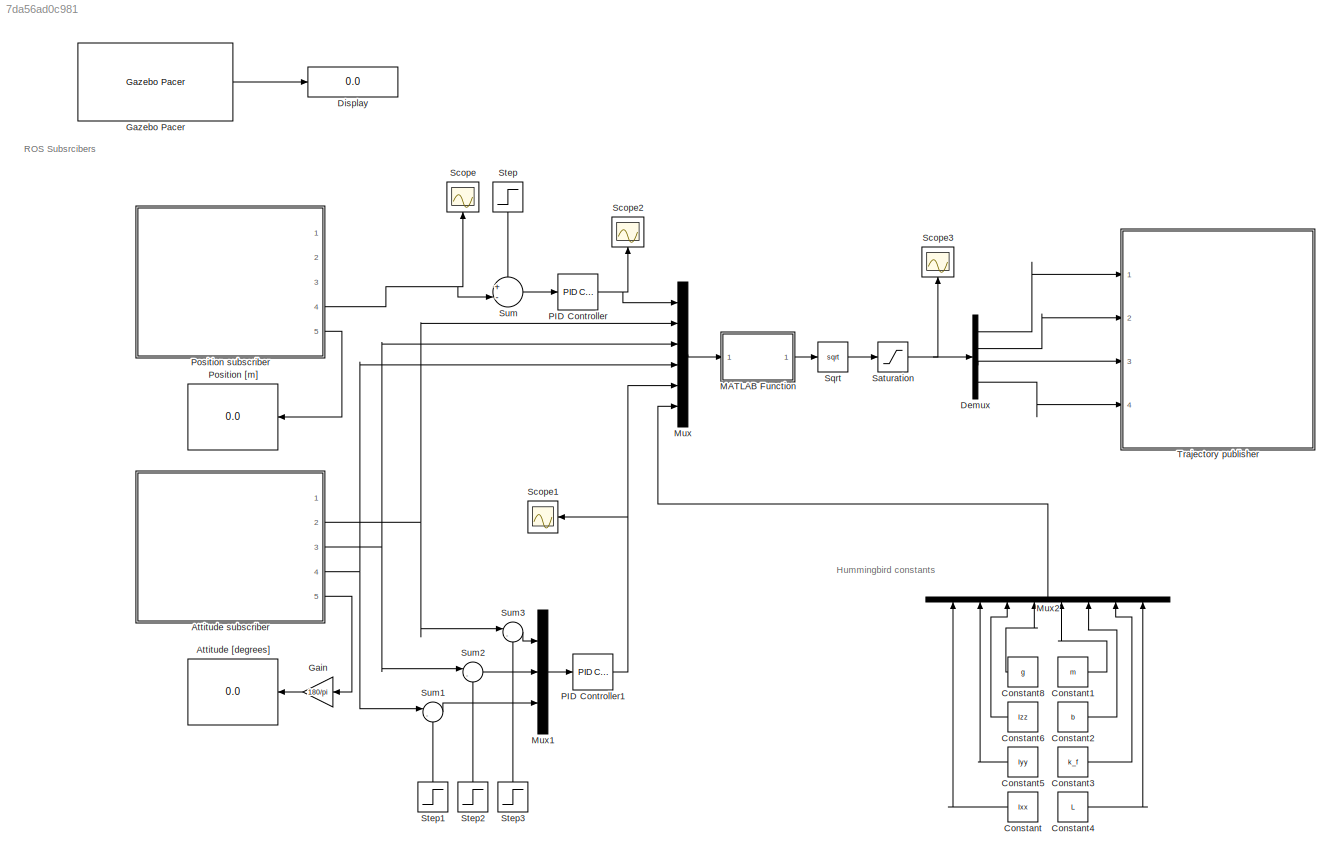
MODEL slx_7da56ad0c981
KIND model
CONFIG AbsTol = auto
CONFIG EnableMultiTasking = off
CONFIG FixedStep = FIXED_STEP_SIZE
CONFIG MaxStep = auto
CONFIG MinStep = auto
CONFIG RelTol = 1e-3
CONFIG SampleTimeConstraint = Unconstrained
CONFIG Solver = FixedStepAuto
CONFIG SolverName = FixedStepAuto
CONFIG StartTime = 0.0
CONFIG StopTime = inf
WORKSPACE source: mxarray member
WORKSPACE SL_ROS_VariableLengthArrays_MaxSizes: object (value not decoded)
BLOCK [Display] Attitude [degrees]
  Decimation = 1
  Ports = [1]
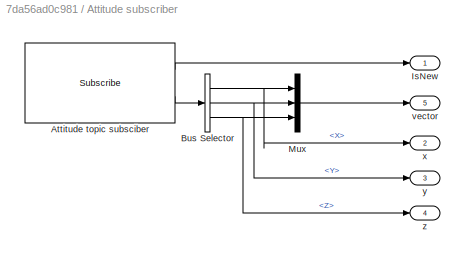
BLOCK [SubSystem] Attitude subscriber
  Ports = [0, 5]
  RequestExecContextInheritance = off
BLOCK [Reference] Attitude subscriber/Attitude topic subsciber  REF=robotlib/Subscribe
  Ports = [0, 2]
  SourceBlock = robotlib/Subscribe
  SourceProductBaseCode = RR
  SourceProductName = ROS Toolbox
  SourceType = ROS Subscribe
BLOCK [BusSelector] Attitude subscriber/Bus Selector
  OutputAsBus = off
  OutputSignals = X,Y,Z
  Ports = [1, 3]
BLOCK [Outport] Attitude subscriber/IsNew
  IconDisplay = Port number
BLOCK [Mux] Attitude subscriber/Mux
  DisplayOption = bar
  Inputs = 3
  Ports = [3, 1]
BLOCK [Outport] Attitude subscriber/vector
  IconDisplay = Port number
  Port = 5
BLOCK [Outport] Attitude subscriber/x
  IconDisplay = Port number
  Port = 2
BLOCK [Outport] Attitude subscriber/y
  IconDisplay = Port number
  Port = 3
BLOCK [Outport] Attitude subscriber/z
  IconDisplay = Port number
  Port = 4
BLOCK [Constant] Constant
  Value = Ixx
BLOCK [Constant] Constant1
  Value = m
BLOCK [Constant] Constant2
  Value = b
BLOCK [Constant] Constant3
  Value = k_f
BLOCK [Constant] Constant4
  Value = L
BLOCK [Constant] Constant5
  Value = Iyy
BLOCK [Constant] Constant6
  Value = Izz
BLOCK [Constant] Constant8
  Value = g
BLOCK [Demux] Demux
  DisplayOption = bar
  Ports = [1, 4]
BLOCK [Display] Display
  Decimation = 1
  Ports = [1]
BLOCK [Gain] Gain
  Gain = 180/pi
  OutDataTypeStr = Inherit: Inherit via internal rule
  ParamDataTypeStr = Inherit: Inherit via internal rule
  SaturateOnIntegerOverflow = off
BLOCK [Reference] Gazebo Pacer  REF=robotgazebolib/Gazebo Pacer
  Ports = [0, 1]
  SourceBlock = robotgazebolib/Gazebo Pacer
  SourceProductBaseCode = RO
  SourceProductName = Robotics System Toolbox
  SourceType = Gazebo Pacer
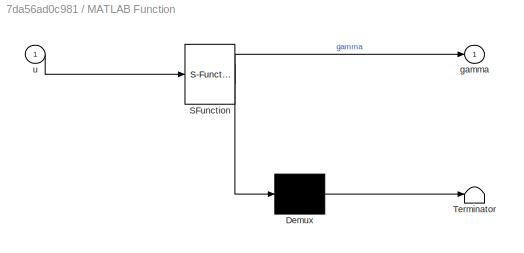
BLOCK [SubSystem] MATLAB Function
  ErrorFcn = Stateflow.Translate.translate
  PermitHierarchicalResolution = ExplicitOnly
  Ports = [1, 1]
  RequestExecContextInheritance = off
  SFBlockType = MATLAB Function
  TreatAsAtomicUnit = on
BLOCK [Demux] MATLAB Function/ Demux 
  Outputs = 1
  Ports = [1, 1]
BLOCK [S-Function] MATLAB Function/ SFunction 
  EnableBusSupport = on
  FunctionName = sf_sfun
  PortCounts = [1 2]
  Ports = [1, 2]
  SFcnIsStateOwnerBlock = off
  SFunctionDeploymentMode = off
  Tag = Stateflow S-Function 2
BLOCK [Terminator] MATLAB Function/ Terminator 
BLOCK [Outport] MATLAB Function/gamma
  IconDisplay = Port number
BLOCK [Inport] MATLAB Function/u
  IconDisplay = Port number
BLOCK [Mux] Mux
  DisplayOption = bar
  Inputs = 6
  Ports = [6, 1]
BLOCK [Mux] Mux1
  DisplayOption = bar
  Inputs = 3
  Ports = [3, 1]
BLOCK [Mux] Mux2
  DisplayOption = bar
  Inputs = 8
  Ports = [8, 1]
BLOCK [Reference] PID Controller  REF=simulink/Continuous/PID Controller
  Ports = [1, 1]
  SourceBlock = simulink/Continuous/PID Controller
  SourceProductBaseCode = SL
  SourceProductName = Simulink
  SourceType = PID 1dof
BLOCK [Reference] PID Controller1  REF=simulink/Continuous/PID Controller
  Ports = [1, 1]
  SourceBlock = simulink/Continuous/PID Controller
  SourceProductBaseCode = SL
  SourceProductName = Simulink
  SourceType = PID 1dof
BLOCK [Display] Position [m]
  Decimation = 1
  Ports = [1]
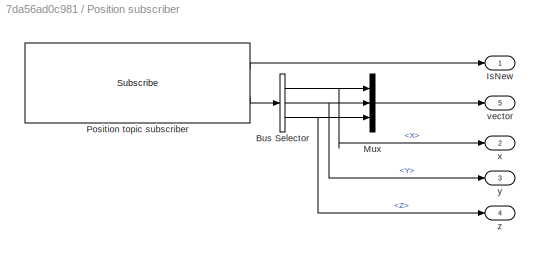
BLOCK [SubSystem] Position subscriber
  Ports = [0, 5]
  RequestExecContextInheritance = off
BLOCK [BusSelector] Position subscriber/Bus Selector
  OutputAsBus = off
  OutputSignals = Point.X,Point.Y,Point.Z
  Ports = [1, 3]
BLOCK [Outport] Position subscriber/IsNew
  IconDisplay = Port number
BLOCK [Mux] Position subscriber/Mux
  DisplayOption = bar
  Inputs = 3
  Ports = [3, 1]
BLOCK [Reference] Position subscriber/Position topic subscriber  REF=robotlib/Subscribe
  Ports = [0, 2]
  SourceBlock = robotlib/Subscribe
  SourceProductBaseCode = RR
  SourceProductName = ROS Toolbox
  SourceType = ROS Subscribe
BLOCK [Outport] Position subscriber/vector
  IconDisplay = Port number
  Port = 5
BLOCK [Outport] Position subscriber/x
  IconDisplay = Port number
  Port = 2
BLOCK [Outport] Position subscriber/y
  IconDisplay = Port number
  Port = 3
BLOCK [Outport] Position subscriber/z
  IconDisplay = Port number
  Port = 4
BLOCK [Saturate] Saturation
  InputPortMap = u0
  LowerLimit = 0
  Ports = [1, 1]
  UpperLimit = MAX_ROTOR_VEL
BLOCK [Scope] Scope
  Floating = off
  NumInputPorts = 1
  Ports = [1]
  ScopeSpecificationString = Simulink.scopes.TimeScopeBlockCfg('CurrentConfiguration', extmgr.ConfigurationSet(extmgr.Configuration('Core','General UI',true),extmgr.Configuration('Core','Source UI',true),extmgr.Configuration('Sources','WiredSimulink',true),extmgr.Configuration('Visuals','Time Domain',true,'SerializedDisplays',{struct('MinYLimReal','-0.1162','MaxYLimReal','1.04576','YLabelReal','','MinYLimMag','0.00000','MaxYL...<+1394ch>
BLOCK [Scope] Scope1
  Floating = off
  NumInputPorts = 1
  Ports = [1]
  ScopeSpecificationString = Simulink.scopes.TimeScopeBlockCfg('CurrentConfiguration', extmgr.ConfigurationSet(extmgr.Configuration('Core','General UI',true),extmgr.Configuration('Core','Source UI',true),extmgr.Configuration('Sources','WiredSimulink',true,'DataLoggingVariableName','ScopeData1'),extmgr.Configuration('Visuals','Time Domain',true),extmgr.Configuration('Tools','Plot Navigation',true),extmgr.Configuration('Tools',...<+40ch>
BLOCK [Scope] Scope2
  Floating = off
  NumInputPorts = 1
  Ports = [1]
  ScopeSpecificationString = Simulink.scopes.TimeScopeBlockCfg('CurrentConfiguration', extmgr.ConfigurationSet(extmgr.Configuration('Core','General UI',true),extmgr.Configuration('Core','Source UI',true),extmgr.Configuration('Sources','WiredSimulink',true,'DataLoggingVariableName','ScopeData2'),extmgr.Configuration('Visuals','Time Domain',true,'SerializedDisplays',{struct('MinYLimReal','-44.14189','MaxYLimReal','211.51552','Y...<+1437ch>
BLOCK [Scope] Scope3
  Floating = off
  NumInputPorts = 1
  Ports = [1]
  ScopeSpecificationString = Simulink.scopes.TimeScopeBlockCfg('CurrentConfiguration', extmgr.ConfigurationSet(extmgr.Configuration('Core','General UI',true),extmgr.Configuration('Core','Source UI',true),extmgr.Configuration('Sources','WiredSimulink',true,'DataLoggingVariableName','ScopeData1'),extmgr.Configuration('Visuals','Time Domain',true,'SerializedDisplays',{struct('MinYLimReal','738.00000','MaxYLimReal','938.00000','Y...<+1485ch>
BLOCK [Sqrt] Sqrt
BLOCK [Step] Step
  SampleTime = 0
BLOCK [Step] Step1
  After = 0
  SampleTime = 0
BLOCK [Step] Step2
  After = 0
  SampleTime = 0
BLOCK [Step] Step3
  After = 0
  SampleTime = 0
BLOCK [Sum] Sum
  IconShape = round
  InputSameDT = off
  Inputs = +-|
  OutDataTypeStr = Inherit: Inherit via internal rule
  Ports = [2, 1]
  SaturateOnIntegerOverflow = off
BLOCK [Sum] Sum1
  IconShape = round
  InputSameDT = off
  Inputs = |-+
  OutDataTypeStr = Inherit: Inherit via internal rule
  Ports = [2, 1]
  SaturateOnIntegerOverflow = off
BLOCK [Sum] Sum2
  IconShape = round
  InputSameDT = off
  Inputs = |-+
  OutDataTypeStr = Inherit: Inherit via internal rule
  Ports = [2, 1]
  SaturateOnIntegerOverflow = off
BLOCK [Sum] Sum3
  IconShape = round
  InputSameDT = off
  Inputs = |-+
  OutDataTypeStr = Inherit: Inherit via internal rule
  Ports = [2, 1]
  SaturateOnIntegerOverflow = off
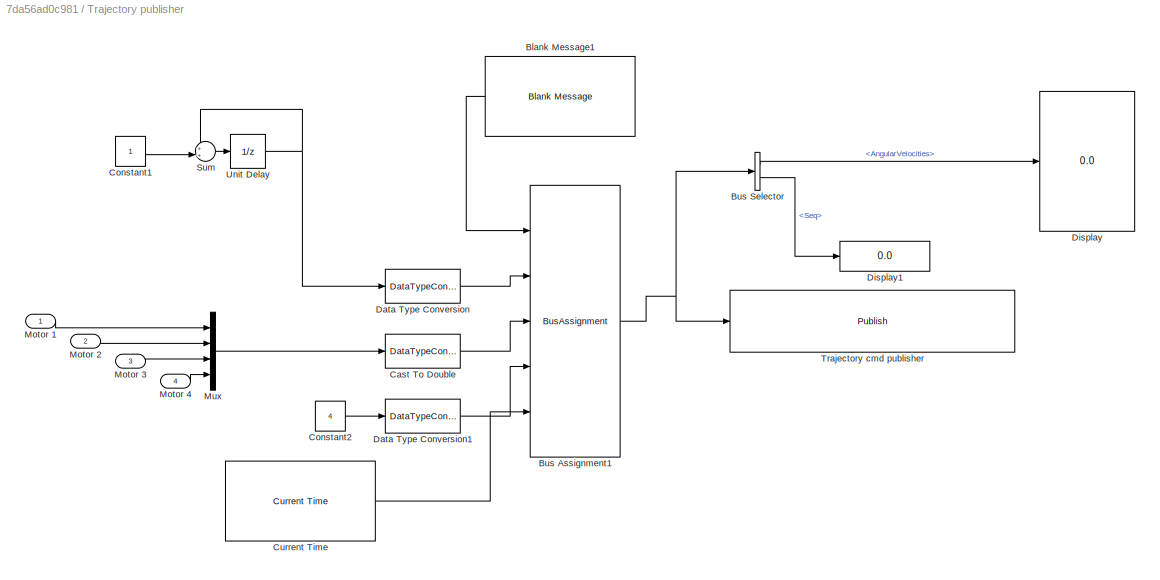
BLOCK [SubSystem] Trajectory publisher
  Ports = [4]
  RequestExecContextInheritance = off
BLOCK [Reference] Trajectory publisher/Blank Message1  REF=robotlib/Blank Message
  Ports = [0, 1]
  SourceBlock = robotlib/Blank Message
  SourceProductBaseCode = RR
  SourceProductName = ROS Toolbox
  SourceType = ROS Blank Message
BLOCK [BusAssignment] Trajectory publisher/Bus Assignment1
  AssignedSignals = Header.Seq,AngularVelocities,AngularVelocities_SL_Info.CurrentLength,Header.Stamp
  Ports = [5, 1]
BLOCK [BusSelector] Trajectory publisher/Bus Selector
  OutputAsBus = off
  OutputSignals = AngularVelocities,Header.Seq
  Ports = [1, 2]
BLOCK [DataTypeConversion] Trajectory publisher/Cast To Double
  OutDataTypeStr = double
  RndMeth = Floor
  SaturateOnIntegerOverflow = off
BLOCK [Constant] Trajectory publisher/Constant1
BLOCK [Constant] Trajectory publisher/Constant2
  Value = 4
BLOCK [Reference] Trajectory publisher/Current Time  REF=robotlib/Current Time
  Ports = [0, 1]
  SourceBlock = robotlib/Current Time
  SourceProductBaseCode = RR
  SourceProductName = ROS Toolbox
  SourceType = ros.slros.internal.block.CurrentTime
BLOCK [DataTypeConversion] Trajectory publisher/Data Type Conversion
  OutDataTypeStr = uint32
  RndMeth = Floor
  SaturateOnIntegerOverflow = off
BLOCK [DataTypeConversion] Trajectory publisher/Data Type Conversion1
  OutDataTypeStr = uint32
  RndMeth = Floor
  SaturateOnIntegerOverflow = off
BLOCK [Display] Trajectory publisher/Display
  Decimation = 1
  Ports = [1]
BLOCK [Display] Trajectory publisher/Display1
  Decimation = 1
  Ports = [1]
BLOCK [Inport] Trajectory publisher/Motor 1
  IconDisplay = Port number
BLOCK [Inport] Trajectory publisher/Motor 2
  IconDisplay = Port number
  Port = 2
BLOCK [Inport] Trajectory publisher/Motor 3
  IconDisplay = Port number
  Port = 3
BLOCK [Inport] Trajectory publisher/Motor 4
  IconDisplay = Port number
  Port = 4
BLOCK [Mux] Trajectory publisher/Mux
  DisplayOption = bar
  Ports = [4, 1]
BLOCK [Sum] Trajectory publisher/Sum
  IconShape = round
  InputSameDT = off
  Inputs = ++|
  OutDataTypeStr = Inherit: Inherit via internal rule
  Ports = [2, 1]
  SaturateOnIntegerOverflow = off
BLOCK [Reference] Trajectory publisher/Trajectory cmd publisher  REF=robotlib/Publish
  Ports = [1]
  SourceBlock = robotlib/Publish
  SourceProductBaseCode = RR
  SourceProductName = ROS Toolbox
  SourceType = ROS Publish
BLOCK [UnitDelay] Trajectory publisher/Unit Delay
  HasFrameUpgradeWarning = on
  SampleTime = FIXED_STEP_SIZE
ANNOTATION (root): Hummingbird constants
ANNOTATION (root): ROS Subsrcibers
LINE Attitude subscriber/Attitude topic subsciber:1 -> Attitude subscriber/IsNew:1
LINE Attitude subscriber/Attitude topic subsciber:2 -> Attitude subscriber/Bus Selector:1
NET Attitude subscriber/Bus Selector:1 -> Attitude subscriber/Mux:1, Attitude subscriber/x:1
NET Attitude subscriber/Bus Selector:2 -> Attitude subscriber/Mux:2, Attitude subscriber/y:1
NET Attitude subscriber/Bus Selector:3 -> Attitude subscriber/Mux:3, Attitude subscriber/z:1
LINE Attitude subscriber/Mux:1 -> Attitude subscriber/vector:1
NET Attitude subscriber:2 -> Mux:2, Sum3:1
NET Attitude subscriber:3 -> Mux:3, Sum2:1
NET Attitude subscriber:4 -> Mux:4, Sum1:1
LINE Attitude subscriber:5 -> Gain:1
LINE Constant1:1 -> Mux2:5
LINE Constant2:1 -> Mux2:6
LINE Constant3:1 -> Mux2:7
LINE Constant4:1 -> Mux2:8
LINE Constant5:1 -> Mux2:2
LINE Constant6:1 -> Mux2:3
LINE Constant8:1 -> Mux2:4
LINE Constant:1 -> Mux2:1
LINE Demux:1 -> Trajectory publisher:1
LINE Demux:2 -> Trajectory publisher:2
LINE Demux:3 -> Trajectory publisher:3
LINE Demux:4 -> Trajectory publisher:4
LINE Gain:1 -> Attitude [degrees]:1
LINE Gazebo Pacer:1 -> Display:1
LINE MATLAB Function:1 -> Sqrt:1
LINE Mux1:1 -> PID Controller1:1
LINE Mux2:1 -> Mux:6
LINE Mux:1 -> MATLAB Function:1
NET PID Controller1:1 -> Mux:5, Scope1:1
NET PID Controller:1 -> Mux:1, Scope2:1
NET Position subscriber/Bus Selector:1 -> Position subscriber/Mux:1, Position subscriber/x:1
NET Position subscriber/Bus Selector:2 -> Position subscriber/Mux:2, Position subscriber/y:1
NET Position subscriber/Bus Selector:3 -> Position subscriber/Mux:3, Position subscriber/z:1
LINE Position subscriber/Mux:1 -> Position subscriber/vector:1
LINE Position subscriber/Position topic subscriber:1 -> Position subscriber/IsNew:1
LINE Position subscriber/Position topic subscriber:2 -> Position subscriber/Bus Selector:1
NET Position subscriber:4 -> Scope:1, Sum:2
LINE Position subscriber:5 -> Position [m]:1
NET Saturation:1 -> Demux:1, Scope3:1
LINE Sqrt:1 -> Saturation:1
LINE Step1:1 -> Sum1:2
LINE Step2:1 -> Sum2:2
LINE Step3:1 -> Sum3:2
LINE Step:1 -> Sum:1
LINE Sum1:1 -> Mux1:3
LINE Sum2:1 -> Mux1:2
LINE Sum3:1 -> Mux1:1
LINE Sum:1 -> PID Controller:1
LINE Trajectory publisher/Blank Message1:1 -> Trajectory publisher/Bus Assignment1:1
NET Trajectory publisher/Bus Assignment1:1 -> Trajectory publisher/Bus Selector:1, Trajectory publisher/Trajectory cmd publisher:1
LINE Trajectory publisher/Bus Selector:1 -> Trajectory publisher/Display:1
LINE Trajectory publisher/Bus Selector:2 -> Trajectory publisher/Display1:1
LINE Trajectory publisher/Cast To Double:1 -> Trajectory publisher/Bus Assignment1:3
LINE Trajectory publisher/Constant1:1 -> Trajectory publisher/Sum:2
LINE Trajectory publisher/Constant2:1 -> Trajectory publisher/Data Type Conversion1:1
LINE Trajectory publisher/Current Time:1 -> Trajectory publisher/Bus Assignment1:5
LINE Trajectory publisher/Data Type Conversion1:1 -> Trajectory publisher/Bus Assignment1:4
LINE Trajectory publisher/Data Type Conversion:1 -> Trajectory publisher/Bus Assignment1:2
LINE Trajectory publisher/Motor 1:1 -> Trajectory publisher/Mux:1
LINE Trajectory publisher/Motor 2:1 -> Trajectory publisher/Mux:2
LINE Trajectory publisher/Motor 3:1 -> Trajectory publisher/Mux:3
LINE Trajectory publisher/Motor 4:1 -> Trajectory publisher/Mux:4
LINE Trajectory publisher/Mux:1 -> Trajectory publisher/Cast To Double:1
LINE Trajectory publisher/Sum:1 -> Trajectory publisher/Unit Delay:1
NET Trajectory publisher/Unit Delay:1 -> Trajectory publisher/Data Type Conversion:1, Trajectory publisher/Sum:1
note: NET lines group one-source signal fan-out (src -> all destinations, sorted); 1:1 wires keep LINE
CHART MATLAB Function states=1 transitions=1
  STATE_LABEL 'eML_blk_kernel()'
  STATE_LABEL 'SCRIPT:\nfunction gamma = fcn(u)\n\n% pose variables\nu_z = u(1);\nphi = u(2);\ntheta = u(3);\npsi = u(4);\nu_att_1 = u(5);\nu_att_2 = u(6);\nu_att_3 = u(7);\n\n% Constants\nIxx = u(8);\nIyy = u(9);\nIzz = u(10);\ng = u(11);\nm = u(12);\nb = u(13);\nk_f = u(14);\nL = u(15);\n\nalti_part = (m*g + u_z)/(k_f * 4 * cos(theta)*cos(phi));\n\ngamma_1 = alti_part - (2*b*u_att_1*Ixx+...\n        u_att_3*Izz*k_f*L)/(4*b*k_f*L);\ngam...<+310ch>'
